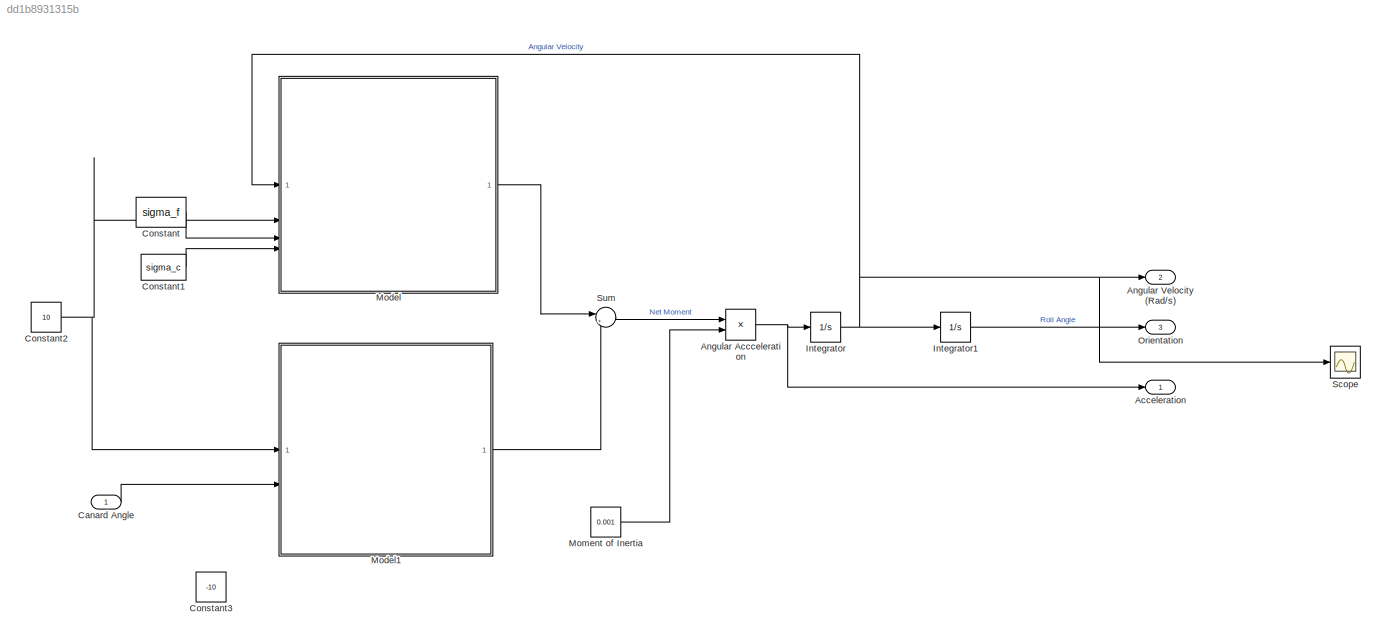
MODEL slx_dd1b8931315b
KIND model
CONFIG AbsTol = auto
CONFIG EnableMultiTasking = off
CONFIG FixedStep = auto
CONFIG MaxStep = auto
CONFIG MinStep = auto
CONFIG RelTol = 1e-3
CONFIG SampleTimeConstraint = Unconstrained
CONFIG SolverName = VariableStepAuto
CONFIG StartTime = 0.0
CONFIG StopTime = 10
BLOCK [Outport] Acceleration
BLOCK [Product] Angular Accceleration
  Inputs = */
BLOCK [Outport] Angular Velocity (Rad//s)
  Port = 2
BLOCK [Inport] Canard Angle
BLOCK [Constant] Constant
  Value = sigma_f
BLOCK [Constant] Constant1
  Value = sigma_c
BLOCK [Constant] Constant2
  Value = 10
BLOCK [Constant] Constant3
  Value = -10
BLOCK [Integrator] Integrator
BLOCK [Integrator] Integrator1
BLOCK [ModelReference] Model
  ModelNameDialog = Damping_Moment.slx
  ModelReferenceVersion = 1.3
BLOCK [ModelReference] Model1
  ModelNameDialog = Forcing_Moment.slx
  ModelReferenceVersion = 1.2
BLOCK [Constant] Moment of Inertia
  Value = 0.001
BLOCK [Outport] Orientation
  Port = 3
BLOCK [Scope] Scope
  Floating = off
  NumInputPorts = 1
  ScopeSpecificationString = Simulink.scopes.TimeScopeBlockCfg('CurrentConfiguration', extmgr.ConfigurationSet(extmgr.Configuration('Core','General UI',true),extmgr.Configuration('Core','Source UI',true),extmgr.Configuration('Sources','WiredSimulink',true),extmgr.Configuration('Visuals','Time Domain',true,'SerializedDisplays',{struct('MinYLimReal','-11.74099','MaxYLimReal','1.30455','YLabelReal','','MinYLimMag','0.00000','Max...<+1695ch>
BLOCK [Sum] Sum
  Inputs = |++
NET Angular Accceleration:1 -> Acceleration:1, Integrator:1
LINE Canard Angle:1 -> Model1:2
LINE Constant1:1 -> Model:4
NET Constant2:1 -> Model1:1, Model:2
LINE Constant:1 -> Model:3
LINE Integrator1:1 -> Orientation:1
NET Integrator:1 -> Angular Velocity (Rad//s):1, Integrator1:1, Model:1, Scope:1
LINE Model1:1 -> Sum:2
LINE Model:1 -> Sum:1
LINE Moment of Inertia:1 -> Angular Accceleration:2
LINE Sum:1 -> Angular Accceleration:1
note: NET lines group one-source signal fan-out (src -> all destinations, sorted); 1:1 wires keep LINE
